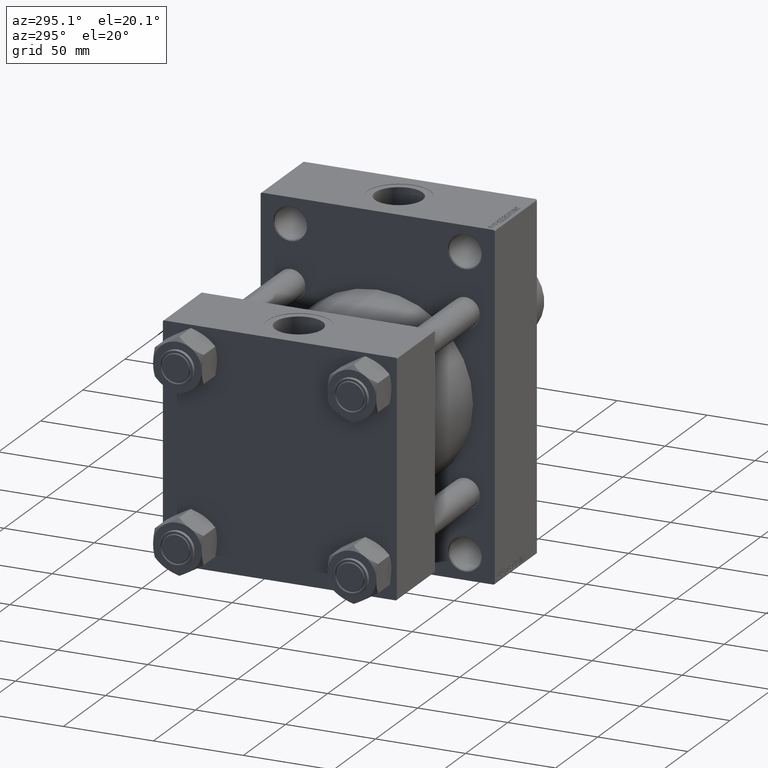
[diagram: clean part render]
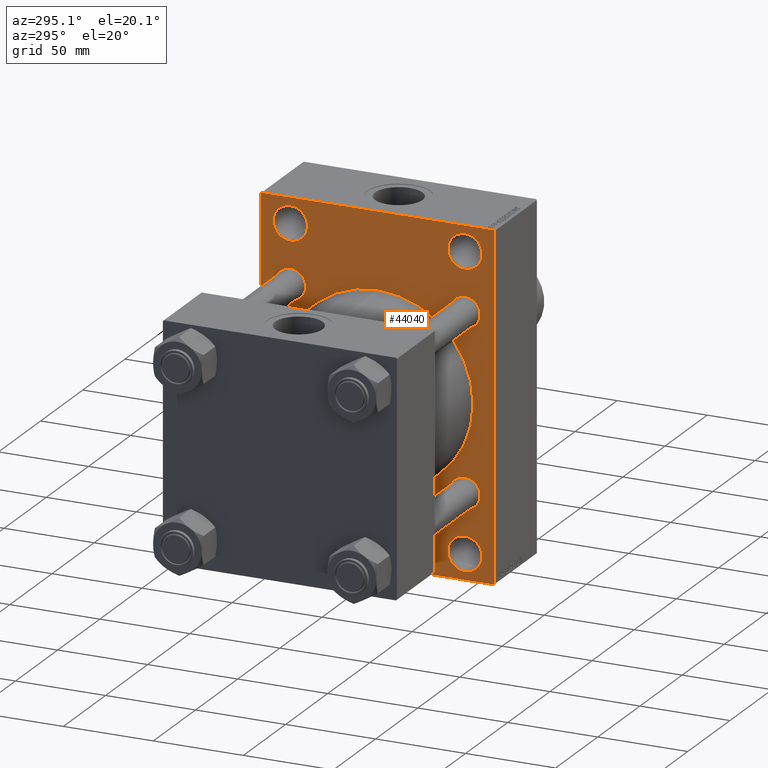
[diagram: same view with one face highlighted and labeled with its STEP entity id]
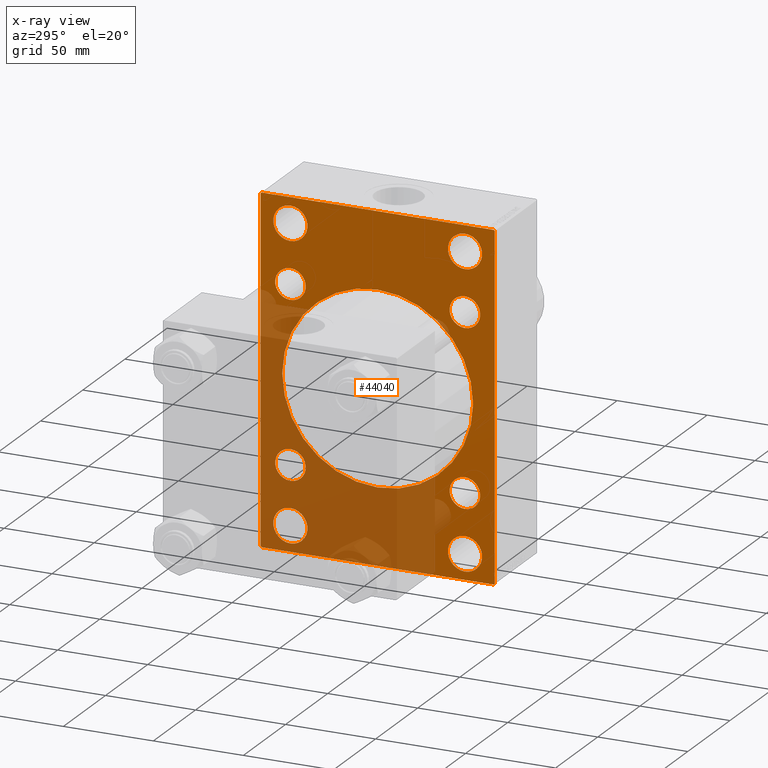
[diagram: x-ray of the same camera — body ghosted, the highlighted face saturated]
A machine part, auxiliary view. The second image highlights one B-rep face of the part: STEP entity #44040.
The next image is the same camera in x-ray: the body ghosted, the highlighted face saturated — about 41% of this face is hidden behind the body in this view.
In plain terms, the highlighted planar face has unit normal (-1, 0, 0).
Its self-contained STEP definition (entity closure, byte-faithful):
#96 = DIRECTION ( 'NONE',  ( 0.000000000000000000, -1.000000000000000000, -1.067522139062650425E-16 ) ) ;
#344 = DIRECTION ( 'NONE',  ( -0.000000000000000000, 0.7071067811865474617, 0.7071067811865474617 ) ) ;
#440 = VERTEX_POINT ( 'NONE', #17673 ) ;
#782 = EDGE_CURVE ( 'NONE', #8880, #18924, #38801, .T. ) ;
#786 = DIRECTION ( 'NONE',  ( 0.000000000000000000, 0.000000000000000000, 1.000000000000000000 ) ) ;
#847 = DIRECTION ( 'NONE',  ( 1.000000000000000000, 0.000000000000000000, 0.000000000000000000 ) ) ;
#1294 = CARTESIAN_POINT ( 'NONE',  ( 115.9999999999999858, -79.74999999999998579, 79.74999999999998579 ) ) ;
#1433 = FACE_BOUND ( 'NONE', #32381, .T. ) ;
#2208 = CARTESIAN_POINT ( 'NONE',  ( 115.9999999999999858, -48.44999999999998153, -56.95000000000001705 ) ) ;
#2391 = FACE_BOUND ( 'NONE', #35463, .T. ) ;
#2422 = CARTESIAN_POINT ( 'NONE',  ( 115.9999999999999858, 48.44999999999999574, -48.44999999999999574 ) ) ;
#2695 = EDGE_CURVE ( 'NONE', #46708, #36113, #47544, .T. ) ;
#2745 = VERTEX_POINT ( 'NONE', #21512 ) ;
#2964 = EDGE_CURVE ( 'NONE', #38881, #44541, #5422, .T. ) ;
#3056 = CARTESIAN_POINT ( 'NONE',  ( 115.9999999999999858, 48.44999999999999574, -39.94999999999998863 ) ) ;
#3514 = CARTESIAN_POINT ( 'NONE',  ( 115.9999999999999858, -48.50000000000000000, 81.00000000000000000 ) ) ;
#4334 = EDGE_LOOP ( 'NONE', ( #18771, #23854 ) ) ;
#4936 = LINE ( 'NONE', #33387, #40443 ) ;
#4942 = LINE ( 'NONE', #1294, #13323 ) ;
#5083 = FACE_BOUND ( 'NONE', #41965, .T. ) ;
#5422 = LINE ( 'NONE', #20261, #33444 ) ;
#5498 = ORIENTED_EDGE ( 'NONE', *, *, #26518, .T. ) ;
#5540 = ORIENTED_EDGE ( 'NONE', *, *, #30166, .T. ) ;
#5567 = FACE_BOUND ( 'NONE', #33550, .T. ) ;
#6044 = AXIS2_PLACEMENT_3D ( 'NONE', #24687, #28563, #10089 ) ;
#6204 = CARTESIAN_POINT ( 'NONE',  ( 115.9999999999999858, -48.44999999999998153, 48.45000000000000995 ) ) ;
#6322 = DIRECTION ( 'NONE',  ( 1.000000000000000000, 0.000000000000000000, 0.000000000000000000 ) ) ;
#6572 = EDGE_LOOP ( 'NONE', ( #40930, #44317 ) ) ;
#6689 = AXIS2_PLACEMENT_3D ( 'NONE', #3514, #33168, #48030 ) ;
#6923 = CARTESIAN_POINT ( 'NONE',  ( 115.9999999999999858, 79.75000000000000000, 79.75000000000000000 ) ) ;
#7143 = LINE ( 'NONE', #19042, #10859 ) ;
#7144 = CARTESIAN_POINT ( 'NONE',  ( 115.9999999999999858, -2.602085213965210642E-15, 0.000000000000000000 ) ) ;
#7192 = CARTESIAN_POINT ( 'NONE',  ( 115.9999999999999858, -48.44999999999998153, -48.45000000000000995 ) ) ;
#7954 = CIRCLE ( 'NONE', #11065, 8.500000000000007105 ) ;
#8389 = DIRECTION ( 'NONE',  ( 0.000000000000000000, 0.000000000000000000, -1.000000000000000000 ) ) ;
#8801 = VERTEX_POINT ( 'NONE', #19062 ) ;
#8880 = VERTEX_POINT ( 'NONE', #37758 ) ;
#8883 = CARTESIAN_POINT ( 'NONE',  ( 115.9999999999999858, 48.50000000000000000, 71.50000000000007105 ) ) ;
#9470 = DIRECTION ( 'NONE',  ( 0.000000000000000000, 0.000000000000000000, 1.000000000000000000 ) ) ;
#9694 = DIRECTION ( 'NONE',  ( -0.000000000000000000, 0.000000000000000000, 1.000000000000000000 ) ) ;
#9837 = ORIENTED_EDGE ( 'NONE', *, *, #26127, .T. ) ;
#9919 = VERTEX_POINT ( 'NONE', #30416 ) ;
#10089 = DIRECTION ( 'NONE',  ( 0.000000000000000000, 0.000000000000000000, 1.000000000000000000 ) ) ;
#10859 = VECTOR ( 'NONE', #47995, 1000.000000000000000 ) ;
#10989 = CARTESIAN_POINT ( 'NONE',  ( 115.9999999999999858, 65.00000000000000000, -95.00000000000002842 ) ) ;
#11065 = AXIS2_PLACEMENT_3D ( 'NONE', #35943, #24775, #9470 ) ;
#11673 = CARTESIAN_POINT ( 'NONE',  ( 115.9999999999999858, -48.44999999999998153, 39.95000000000000284 ) ) ;
#11730 = FACE_BOUND ( 'NONE', #17448, .T. ) ;
#11782 = ORIENTED_EDGE ( 'NONE', *, *, #18298, .F. ) ;
#12022 = EDGE_LOOP ( 'NONE', ( #23219, #43447 ) ) ;
#12209 = EDGE_CURVE ( 'NONE', #44541, #33869, #29208, .T. ) ;
#12557 = CARTESIAN_POINT ( 'NONE',  ( 115.9999999999999858, 64.50000000000000000, 95.00000000000000000 ) ) ;
#12581 = EDGE_CURVE ( 'NONE', #34629, #32846, #44074, .T. ) ;
#12627 = FACE_BOUND ( 'NONE', #6572, .T. ) ;
#12700 = EDGE_CURVE ( 'NONE', #8801, #19932, #20001, .T. ) ;
#12798 = EDGE_CURVE ( 'NONE', #25164, #32560, #38655, .T. ) ;
#13270 = VECTOR ( 'NONE', #14215, 1000.000000000000114 ) ;
#13323 = VECTOR ( 'NONE', #344, 1000.000000000000114 ) ;
#13379 = VERTEX_POINT ( 'NONE', #2208 ) ;
#14215 = DIRECTION ( 'NONE',  ( 0.000000000000000000, 0.7071067811865474617, -0.7071067811865474617 ) ) ;
#14775 = CIRCLE ( 'NONE', #31078, 8.500000000000007105 ) ;
#15053 = AXIS2_PLACEMENT_3D ( 'NONE', #16143, #19552, #45329 ) ;
#15657 = EDGE_CURVE ( 'NONE', #19932, #8801, #18536, .T. ) ;
#15677 = CARTESIAN_POINT ( 'NONE',  ( 115.9999999999999858, -2.602085213965210642E-15, 0.000000000000000000 ) ) ;
#15705 = CIRCLE ( 'NONE', #40552, 53.00000000000000711 ) ;
#16143 = CARTESIAN_POINT ( 'NONE',  ( 115.9999999999999858, -48.44999999999998153, 48.45000000000000995 ) ) ;
#16246 = DIRECTION ( 'NONE',  ( 0.000000000000000000, 0.000000000000000000, 1.000000000000000000 ) ) ;
#16265 = DIRECTION ( 'NONE',  ( -1.000000000000000000, 0.000000000000000000, -0.000000000000000000 ) ) ;
#16353 = DIRECTION ( 'NONE',  ( 1.000000000000000000, 0.000000000000000000, 0.000000000000000000 ) ) ;
#16366 = CARTESIAN_POINT ( 'NONE',  ( 115.9999999999999858, -65.00000000000000000, 94.49999999999998579 ) ) ;
#16829 = LINE ( 'NONE', #39652, #42110 ) ;
#16912 = VECTOR ( 'NONE', #26055, 1000.000000000000000 ) ;
#16919 = EDGE_CURVE ( 'NONE', #36113, #38881, #7143, .T. ) ;
#17116 = CIRCLE ( 'NONE', #35690, 9.499999999999925393 ) ;
#17448 = EDGE_LOOP ( 'NONE', ( #30326, #33652 ) ) ;
#17486 = ORIENTED_EDGE ( 'NONE', *, *, #29300, .T. ) ;
#17649 = ORIENTED_EDGE ( 'NONE', *, *, #12209, .T. ) ;
#17673 = CARTESIAN_POINT ( 'NONE',  ( 115.9999999999999858, -48.50000000000000000, 90.49999999999992895 ) ) ;
#18246 = AXIS2_PLACEMENT_3D ( 'NONE', #38469, #16353, #31177 ) ;
#18298 = EDGE_CURVE ( 'NONE', #45650, #45802, #38399, .T. ) ;
#18370 = CARTESIAN_POINT ( 'NONE',  ( 115.9999999999999858, 48.44999999999999574, -56.95000000000000284 ) ) ;
#18523 = VERTEX_POINT ( 'NONE', #36665 ) ;
#18536 = CIRCLE ( 'NONE', #23213, 9.499999999999925393 ) ;
#18721 = VERTEX_POINT ( 'NONE', #47103 ) ;
#18771 = ORIENTED_EDGE ( 'NONE', *, *, #48043, .T. ) ;
#18924 = VERTEX_POINT ( 'NONE', #30512 ) ;
#19042 = CARTESIAN_POINT ( 'NONE',  ( 115.9999999999999858, 65.00000000000000000, 95.00000000000000000 ) ) ;
#19062 = CARTESIAN_POINT ( 'NONE',  ( 115.9999999999999858, 48.50000000000000000, 90.49999999999992895 ) ) ;
#19426 = CARTESIAN_POINT ( 'NONE',  ( 115.9999999999999858, -48.50000000000000000, 81.00000000000000000 ) ) ;
#19508 = DIRECTION ( 'NONE',  ( 1.000000000000000000, 0.000000000000000000, 0.000000000000000000 ) ) ;
#19552 = DIRECTION ( 'NONE',  ( 1.000000000000000000, 0.000000000000000000, 0.000000000000000000 ) ) ;
#19667 = AXIS2_PLACEMENT_3D ( 'NONE', #6204, #39983, #39268 ) ;
#19734 = AXIS2_PLACEMENT_3D ( 'NONE', #45757, #19508, #786 ) ;
#19932 = VERTEX_POINT ( 'NONE', #8883 ) ;
#20001 = CIRCLE ( 'NONE', #6044, 9.499999999999925393 ) ;
#20261 = CARTESIAN_POINT ( 'NONE',  ( 115.9999999999999858, 79.75000000000000000, -79.75000000000000000 ) ) ;
#20293 = CARTESIAN_POINT ( 'NONE',  ( 115.9999999999999858, -2.602085213965210642E-15, 53.00000000000000711 ) ) ;
#20646 = CARTESIAN_POINT ( 'NONE',  ( 115.9999999999999858, 0.000000000000000000, 0.000000000000000000 ) ) ;
#20788 = ORIENTED_EDGE ( 'NONE', *, *, #782, .T. ) ;
#20882 = FACE_OUTER_BOUND ( 'NONE', #42005, .T. ) ;
#21170 = EDGE_CURVE ( 'NONE', #440, #9919, #17116, .T. ) ;
#21395 = AXIS2_PLACEMENT_3D ( 'NONE', #40935, #36796, #44594 ) ;
#21512 = CARTESIAN_POINT ( 'NONE',  ( 115.9999999999999858, 48.44999999999999574, 39.94999999999998863 ) ) ;
#21729 = AXIS2_PLACEMENT_3D ( 'NONE', #30208, #35225, #23158 ) ;
#21837 = CARTESIAN_POINT ( 'NONE',  ( 115.9999999999999858, -48.50000000000000000, -90.49999999999992895 ) ) ;
#22736 = DIRECTION ( 'NONE',  ( 0.000000000000000000, 0.000000000000000000, 1.000000000000000000 ) ) ;
#23012 = EDGE_CURVE ( 'NONE', #32846, #34629, #14775, .T. ) ;
#23158 = DIRECTION ( 'NONE',  ( 0.000000000000000000, 0.000000000000000000, 1.000000000000000000 ) ) ;
#23213 = AXIS2_PLACEMENT_3D ( 'NONE', #35815, #32405, #38987 ) ;
#23219 = ORIENTED_EDGE ( 'NONE', *, *, #42326, .T. ) ;
#23315 = VECTOR ( 'NONE', #34270, 1000.000000000000000 ) ;
#23331 = CARTESIAN_POINT ( 'NONE',  ( 115.9999999999999858, 48.44999999999999574, 56.95000000000000284 ) ) ;
#23335 = CARTESIAN_POINT ( 'NONE',  ( 115.9999999999999858, -65.00000000000000000, 94.99999999999998579 ) ) ;
#23370 = ORIENTED_EDGE ( 'NONE', *, *, #15657, .T. ) ;
#23626 = CIRCLE ( 'NONE', #19734, 9.499999999999925393 ) ;
#23822 = EDGE_CURVE ( 'NONE', #46708, #18721, #4936, .T. ) ;
#23854 = ORIENTED_EDGE ( 'NONE', *, *, #26844, .T. ) ;
#23971 = DIRECTION ( 'NONE',  ( 0.000000000000000000, 0.000000000000000000, 1.000000000000000000 ) ) ;
#23998 = ORIENTED_EDGE ( 'NONE', *, *, #35722, .T. ) ;
#24520 = CIRCLE ( 'NONE', #6689, 9.499999999999925393 ) ;
#24687 = CARTESIAN_POINT ( 'NONE',  ( 115.9999999999999858, 48.50000000000000000, 81.00000000000000000 ) ) ;
#24775 = DIRECTION ( 'NONE',  ( 1.000000000000000000, 0.000000000000000000, 0.000000000000000000 ) ) ;
#24975 = EDGE_CURVE ( 'NONE', #45650, #18721, #4942, .T. ) ;
#25144 = ORIENTED_EDGE ( 'NONE', *, *, #23822, .F. ) ;
#25164 = VERTEX_POINT ( 'NONE', #44789 ) ;
#25774 = AXIS2_PLACEMENT_3D ( 'NONE', #15677, #847, #8389 ) ;
#25788 = CARTESIAN_POINT ( 'NONE',  ( 115.9999999999999858, 65.00000000000000000, 94.50000000000000000 ) ) ;
#26055 = DIRECTION ( 'NONE',  ( 0.000000000000000000, -1.000000000000000000, 0.000000000000000000 ) ) ;
#26127 = EDGE_CURVE ( 'NONE', #18523, #34897, #45189, .T. ) ;
#26518 = EDGE_CURVE ( 'NONE', #33869, #45802, #16829, .T. ) ;
#26652 = DIRECTION ( 'NONE',  ( 1.000000000000000000, 0.000000000000000000, 0.000000000000000000 ) ) ;
#26844 = EDGE_CURVE ( 'NONE', #2745, #35220, #7954, .T. ) ;
#27605 = CARTESIAN_POINT ( 'NONE',  ( 115.9999999999999858, 48.44999999999999574, -48.44999999999999574 ) ) ;
#27664 = CIRCLE ( 'NONE', #40859, 8.500000000000007105 ) ;
#27793 = AXIS2_PLACEMENT_3D ( 'NONE', #33161, #44117, #37296 ) ;
#28186 = DIRECTION ( 'NONE',  ( 0.000000000000000000, 0.000000000000000000, 1.000000000000000000 ) ) ;
#28563 = DIRECTION ( 'NONE',  ( 1.000000000000000000, 0.000000000000000000, 0.000000000000000000 ) ) ;
#28704 = DIRECTION ( 'NONE',  ( 0.000000000000000000, -0.7071067811865376918, 0.7071067811865574537 ) ) ;
#28978 = CARTESIAN_POINT ( 'NONE',  ( 115.9999999999999858, -65.00000000000000000, -94.50000000000001421 ) ) ;
#29208 = LINE ( 'NONE', #10989, #16912 ) ;
#29300 = EDGE_CURVE ( 'NONE', #31706, #30909, #40620, .T. ) ;
#29792 = CIRCLE ( 'NONE', #15053, 8.500000000000007105 ) ;
#29894 = CIRCLE ( 'NONE', #39190, 8.500000000000007105 ) ;
#29927 = CIRCLE ( 'NONE', #21395, 8.500000000000007105 ) ;
#30166 = EDGE_CURVE ( 'NONE', #30909, #31706, #29792, .T. ) ;
#30208 = CARTESIAN_POINT ( 'NONE',  ( 115.9999999999999858, 48.50000000000000000, -81.00000000000000000 ) ) ;
#30326 = ORIENTED_EDGE ( 'NONE', *, *, #21170, .T. ) ;
#30416 = CARTESIAN_POINT ( 'NONE',  ( 115.9999999999999858, -48.50000000000000000, 71.50000000000007105 ) ) ;
#30512 = CARTESIAN_POINT ( 'NONE',  ( 115.9999999999999858, 48.50000000000000000, -71.50000000000007105 ) ) ;
#30909 = VERTEX_POINT ( 'NONE', #11673 ) ;
#30969 = ORIENTED_EDGE ( 'NONE', *, *, #16919, .T. ) ;
#31078 = AXIS2_PLACEMENT_3D ( 'NONE', #2422, #6322, #28186 ) ;
#31177 = DIRECTION ( 'NONE',  ( 0.000000000000000000, 0.000000000000000000, 1.000000000000000000 ) ) ;
#31342 = EDGE_CURVE ( 'NONE', #18924, #8880, #23626, .T. ) ;
#31452 = CARTESIAN_POINT ( 'NONE',  ( 115.9999999999999858, 48.44999999999999574, 48.44999999999999574 ) ) ;
#31706 = VERTEX_POINT ( 'NONE', #32280 ) ;
#31805 = FACE_BOUND ( 'NONE', #37227, .T. ) ;
#32280 = CARTESIAN_POINT ( 'NONE',  ( 115.9999999999999858, -48.44999999999998153, 56.95000000000001705 ) ) ;
#32381 = EDGE_LOOP ( 'NONE', ( #23998, #9837 ) ) ;
#32405 = DIRECTION ( 'NONE',  ( 1.000000000000000000, 0.000000000000000000, 0.000000000000000000 ) ) ;
#32406 = DIRECTION ( 'NONE',  ( 0.000000000000000000, 0.000000000000000000, 1.000000000000000000 ) ) ;
#32560 = VERTEX_POINT ( 'NONE', #21837 ) ;
#32846 = VERTEX_POINT ( 'NONE', #3056 ) ;
#33161 = CARTESIAN_POINT ( 'NONE',  ( 115.9999999999999858, -48.50000000000000000, -81.00000000000000000 ) ) ;
#33168 = DIRECTION ( 'NONE',  ( 1.000000000000000000, 0.000000000000000000, 0.000000000000000000 ) ) ;
#33387 = CARTESIAN_POINT ( 'NONE',  ( 115.9999999999999858, 65.00000000000000000, 95.00000000000000000 ) ) ;
#33444 = VECTOR ( 'NONE', #35065, 1000.000000000000114 ) ;
#33550 = EDGE_LOOP ( 'NONE', ( #39107, #40752 ) ) ;
#33652 = ORIENTED_EDGE ( 'NONE', *, *, #47007, .T. ) ;
#33869 = VERTEX_POINT ( 'NONE', #36836 ) ;
#34270 = DIRECTION ( 'NONE',  ( 0.000000000000000000, 0.000000000000000000, -1.000000000000000000 ) ) ;
#34629 = VERTEX_POINT ( 'NONE', #18370 ) ;
#34897 = VERTEX_POINT ( 'NONE', #20293 ) ;
#34967 = FACE_BOUND ( 'NONE', #12022, .T. ) ;
#35065 = DIRECTION ( 'NONE',  ( -0.000000000000000000, -0.7071067811865474617, -0.7071067811865474617 ) ) ;
#35116 = ORIENTED_EDGE ( 'NONE', *, *, #2695, .T. ) ;
#35209 = FACE_BOUND ( 'NONE', #4334, .T. ) ;
#35220 = VERTEX_POINT ( 'NONE', #23331 ) ;
#35225 = DIRECTION ( 'NONE',  ( 1.000000000000000000, 0.000000000000000000, 0.000000000000000000 ) ) ;
#35463 = EDGE_LOOP ( 'NONE', ( #42341, #20788 ) ) ;
#35690 = AXIS2_PLACEMENT_3D ( 'NONE', #19426, #38122, #16246 ) ;
#35722 = EDGE_CURVE ( 'NONE', #34897, #18523, #15705, .T. ) ;
#35815 = CARTESIAN_POINT ( 'NONE',  ( 115.9999999999999858, 48.50000000000000000, 81.00000000000000000 ) ) ;
#35943 = CARTESIAN_POINT ( 'NONE',  ( 115.9999999999999858, 48.44999999999999574, 48.44999999999999574 ) ) ;
#36113 = VERTEX_POINT ( 'NONE', #25788 ) ;
#36665 = CARTESIAN_POINT ( 'NONE',  ( 115.9999999999999858, 3.888542821515762466E-15, -53.00000000000000711 ) ) ;
#36776 = DIRECTION ( 'NONE',  ( 1.000000000000000000, 0.000000000000000000, 0.000000000000000000 ) ) ;
#36796 = DIRECTION ( 'NONE',  ( 1.000000000000000000, 0.000000000000000000, 0.000000000000000000 ) ) ;
#36836 = CARTESIAN_POINT ( 'NONE',  ( 115.9999999999999858, -64.50000000000000000, -95.00000000000002842 ) ) ;
#37227 = EDGE_LOOP ( 'NONE', ( #17486, #5540 ) ) ;
#37296 = DIRECTION ( 'NONE',  ( 0.000000000000000000, 0.000000000000000000, 1.000000000000000000 ) ) ;
#37758 = CARTESIAN_POINT ( 'NONE',  ( 115.9999999999999858, 48.50000000000000000, -90.49999999999992895 ) ) ;
#38122 = DIRECTION ( 'NONE',  ( 1.000000000000000000, 0.000000000000000000, 0.000000000000000000 ) ) ;
#38399 = LINE ( 'NONE', #23335, #23315 ) ;
#38469 = CARTESIAN_POINT ( 'NONE',  ( 115.9999999999999858, -48.50000000000000000, -81.00000000000000000 ) ) ;
#38655 = CIRCLE ( 'NONE', #27793, 9.499999999999925393 ) ;
#38801 = CIRCLE ( 'NONE', #21729, 9.499999999999925393 ) ;
#38881 = VERTEX_POINT ( 'NONE', #46238 ) ;
#38987 = DIRECTION ( 'NONE',  ( 0.000000000000000000, 0.000000000000000000, 1.000000000000000000 ) ) ;
#39107 = ORIENTED_EDGE ( 'NONE', *, *, #12798, .T. ) ;
#39190 = AXIS2_PLACEMENT_3D ( 'NONE', #7192, #40716, #22736 ) ;
#39268 = DIRECTION ( 'NONE',  ( 0.000000000000000000, 0.000000000000000000, 1.000000000000000000 ) ) ;
#39386 = AXIS2_PLACEMENT_3D ( 'NONE', #27605, #26652, #23971 ) ;
#39652 = CARTESIAN_POINT ( 'NONE',  ( 115.9999999999999858, -79.75000000000092371, -79.74999999999870681 ) ) ;
#39983 = DIRECTION ( 'NONE',  ( 1.000000000000000000, 0.000000000000000000, 0.000000000000000000 ) ) ;
#40443 = VECTOR ( 'NONE', #96, 1000.000000000000000 ) ;
#40552 = AXIS2_PLACEMENT_3D ( 'NONE', #7144, #36776, #47523 ) ;
#40620 = CIRCLE ( 'NONE', #19667, 8.500000000000007105 ) ;
#40716 = DIRECTION ( 'NONE',  ( 1.000000000000000000, 0.000000000000000000, 0.000000000000000000 ) ) ;
#40752 = ORIENTED_EDGE ( 'NONE', *, *, #41160, .T. ) ;
#40859 = AXIS2_PLACEMENT_3D ( 'NONE', #31452, #46302, #32406 ) ;
#40930 = ORIENTED_EDGE ( 'NONE', *, *, #23012, .T. ) ;
#40935 = CARTESIAN_POINT ( 'NONE',  ( 115.9999999999999858, -48.44999999999998153, -48.45000000000000995 ) ) ;
#41160 = EDGE_CURVE ( 'NONE', #32560, #25164, #43879, .T. ) ;
#41914 = ORIENTED_EDGE ( 'NONE', *, *, #12700, .T. ) ;
#41965 = EDGE_LOOP ( 'NONE', ( #41914, #23370 ) ) ;
#42005 = EDGE_LOOP ( 'NONE', ( #17649, #5498, #11782, #44150, #25144, #35116, #30969, #45700 ) ) ;
#42110 = VECTOR ( 'NONE', #28704, 999.9999999999998863 ) ;
#42326 = EDGE_CURVE ( 'NONE', #43524, #13379, #29927, .T. ) ;
#42341 = ORIENTED_EDGE ( 'NONE', *, *, #31342, .T. ) ;
#42450 = CARTESIAN_POINT ( 'NONE',  ( 115.9999999999999858, -48.44999999999998153, -39.95000000000000284 ) ) ;
#42756 = PLANE ( 'NONE',  #47719 ) ;
#43447 = ORIENTED_EDGE ( 'NONE', *, *, #44667, .T. ) ;
#43524 = VERTEX_POINT ( 'NONE', #42450 ) ;
#43650 = CARTESIAN_POINT ( 'NONE',  ( 115.9999999999999858, 64.50000000000000000, -95.00000000000002842 ) ) ;
#43879 = CIRCLE ( 'NONE', #18246, 9.499999999999925393 ) ;
#44040 = ADVANCED_FACE ( 'NONE', ( #11730, #5567, #2391, #5083, #31805, #35209, #12627, #34967, #1433, #20882 ), #42756, .T. ) ;
#44074 = CIRCLE ( 'NONE', #39386, 8.500000000000007105 ) ;
#44117 = DIRECTION ( 'NONE',  ( 1.000000000000000000, 0.000000000000000000, 0.000000000000000000 ) ) ;
#44150 = ORIENTED_EDGE ( 'NONE', *, *, #24975, .T. ) ;
#44317 = ORIENTED_EDGE ( 'NONE', *, *, #12581, .T. ) ;
#44541 = VERTEX_POINT ( 'NONE', #43650 ) ;
#44594 = DIRECTION ( 'NONE',  ( 0.000000000000000000, 0.000000000000000000, 1.000000000000000000 ) ) ;
#44667 = EDGE_CURVE ( 'NONE', #13379, #43524, #29894, .T. ) ;
#44789 = CARTESIAN_POINT ( 'NONE',  ( 115.9999999999999858, -48.50000000000000000, -71.50000000000007105 ) ) ;
#45189 = CIRCLE ( 'NONE', #25774, 53.00000000000000711 ) ;
#45329 = DIRECTION ( 'NONE',  ( 0.000000000000000000, 0.000000000000000000, 1.000000000000000000 ) ) ;
#45650 = VERTEX_POINT ( 'NONE', #16366 ) ;
#45700 = ORIENTED_EDGE ( 'NONE', *, *, #2964, .T. ) ;
#45757 = CARTESIAN_POINT ( 'NONE',  ( 115.9999999999999858, 48.50000000000000000, -81.00000000000000000 ) ) ;
#45802 = VERTEX_POINT ( 'NONE', #28978 ) ;
#46238 = CARTESIAN_POINT ( 'NONE',  ( 115.9999999999999858, 65.00000000000000000, -94.50000000000002842 ) ) ;
#46302 = DIRECTION ( 'NONE',  ( 1.000000000000000000, 0.000000000000000000, 0.000000000000000000 ) ) ;
#46708 = VERTEX_POINT ( 'NONE', #12557 ) ;
#47007 = EDGE_CURVE ( 'NONE', #9919, #440, #24520, .T. ) ;
#47103 = CARTESIAN_POINT ( 'NONE',  ( 115.9999999999999858, -64.50000000000000000, 94.99999999999998579 ) ) ;
#47523 = DIRECTION ( 'NONE',  ( 0.000000000000000000, 0.000000000000000000, -1.000000000000000000 ) ) ;
#47544 = LINE ( 'NONE', #6923, #13270 ) ;
#47719 = AXIS2_PLACEMENT_3D ( 'NONE', #20646, #16265, #9694 ) ;
#47995 = DIRECTION ( 'NONE',  ( 0.000000000000000000, 0.000000000000000000, -1.000000000000000000 ) ) ;
#48030 = DIRECTION ( 'NONE',  ( 0.000000000000000000, 0.000000000000000000, 1.000000000000000000 ) ) ;
#48043 = EDGE_CURVE ( 'NONE', #35220, #2745, #27664, .T. ) ;